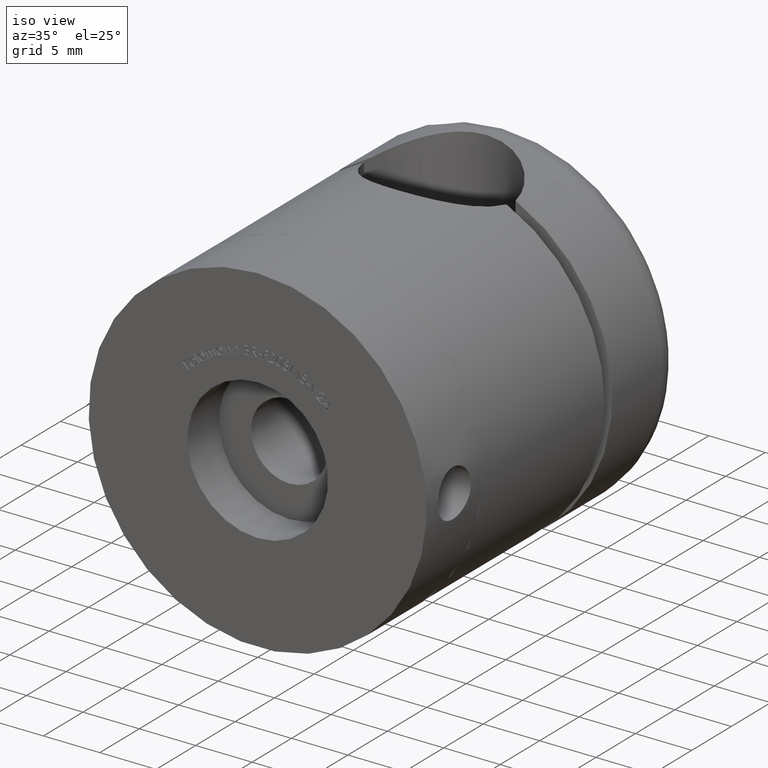
[diagram: clean part render]
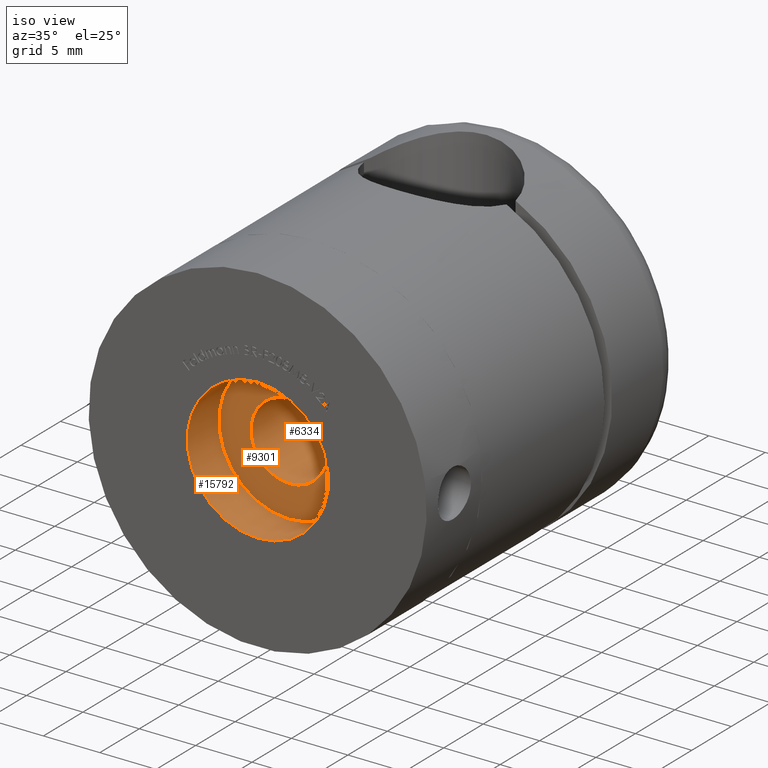
[diagram: same view with one multi-face feature highlighted, each face labeled with its STEP entity id]
A machine part, iso view. The highlighted faces form ONE feature: a stepped (counterbored) hole: 2 coaxial cylindrical walls of radii 3.4 -> 6.25 mm joined by 1 annular planar shoulder face(s). The faces share edges in the B-rep.
Their STEP definitions:
[1] entity #15792 (Cylinder):
#94 = CIRCLE ( 'NONE', #186, 6.250000000000000000 ) ;
#177 = DIRECTION ( 'NONE',  ( -0.0000000000000000000, -1.000000000000000000, -0.0000000000000000000 ) ) ;
#186 = AXIS2_PLACEMENT_3D ( 'NONE', #3743, #10500, #11815 ) ;
#1833 = CARTESIAN_POINT ( 'NONE',  ( 0.0000000000000000000, 0.0000000000000000000, -6.250000000000000000 ) ) ;
#1942 = CARTESIAN_POINT ( 'NONE',  ( 0.0000000000000000000, 0.0000000000000000000, 0.0000000000000000000 ) ) ;
#3018 = VERTEX_POINT ( 'NONE', #1833 ) ;
#3154 = EDGE_LOOP ( 'NONE', ( #11336 ) ) ;
#3409 = ORIENTED_EDGE ( 'NONE', *, *, #7794, .T. ) ;
#3743 = CARTESIAN_POINT ( 'NONE',  ( 0.0000000000000000000, 4.000000000000000000, 0.0000000000000000000 ) ) ;
#4492 = FACE_OUTER_BOUND ( 'NONE', #3154, .T. ) ;
#4604 = DIRECTION ( 'NONE',  ( 0.0000000000000000000, -1.000000000000000000, 0.0000000000000000000 ) ) ;
#4685 = FACE_OUTER_BOUND ( 'NONE', #16888, .T. ) ;
#4780 = EDGE_CURVE ( 'NONE', #10491, #10491, #94, .T. ) ;
#7794 = EDGE_CURVE ( 'NONE', #3018, #3018, #12102, .T. ) ;
#8202 = DIRECTION ( 'NONE',  ( 0.0000000000000000000, 0.0000000000000000000, -1.000000000000000000 ) ) ;
#8991 = AXIS2_PLACEMENT_3D ( 'NONE', #1942, #4604, #9738 ) ;
#9738 = DIRECTION ( 'NONE',  ( 0.0000000000000000000, 0.0000000000000000000, -1.000000000000000000 ) ) ;
#10314 = CYLINDRICAL_SURFACE ( 'NONE', #12059, 6.250000000000000000 ) ;
#10491 = VERTEX_POINT ( 'NONE', #15042 ) ;
#10500 = DIRECTION ( 'NONE',  ( 0.0000000000000000000, -1.000000000000000000, 0.0000000000000000000 ) ) ;
#11336 = ORIENTED_EDGE ( 'NONE', *, *, #4780, .F. ) ;
#11815 = DIRECTION ( 'NONE',  ( 0.0000000000000000000, 0.0000000000000000000, -1.000000000000000000 ) ) ;
#12059 = AXIS2_PLACEMENT_3D ( 'NONE', #12309, #177, #8202 ) ;
#12102 = CIRCLE ( 'NONE', #8991, 6.250000000000000000 ) ;
#12309 = CARTESIAN_POINT ( 'NONE',  ( 0.0000000000000000000, 4.000000000000000000, 0.0000000000000000000 ) ) ;
#15042 = CARTESIAN_POINT ( 'NONE',  ( 0.0000000000000000000, 4.000000000000000000, -6.250000000000000000 ) ) ;
#15792 = ADVANCED_FACE ( 'NONE', ( #4492, #4685 ), #10314, .F. ) ;
#16888 = EDGE_LOOP ( 'NONE', ( #3409 ) ) ;
[2] entity #6334 (Cylinder):
#80 = AXIS2_PLACEMENT_3D ( 'NONE', #7316, #2033, #9877 ) ;
#336 = ORIENTED_EDGE ( 'NONE', *, *, #9376, .T. ) ;
#2033 = DIRECTION ( 'NONE',  ( -0.0000000000000000000, -1.000000000000000000, -0.0000000000000000000 ) ) ;
#2146 = AXIS2_PLACEMENT_3D ( 'NONE', #8802, #14100, #10184 ) ;
#2180 = FACE_OUTER_BOUND ( 'NONE', #7659, .T. ) ;
#2833 = DIRECTION ( 'NONE',  ( -0.0000000000000000000, -1.000000000000000000, -0.0000000000000000000 ) ) ;
#2994 = CYLINDRICAL_SURFACE ( 'NONE', #80, 3.399999999999997700 ) ;
#4200 = DIRECTION ( 'NONE',  ( 0.0000000000000000000, 0.0000000000000000000, -1.000000000000000000 ) ) ;
#4252 = VERTEX_POINT ( 'NONE', #12516 ) ;
#5368 = CARTESIAN_POINT ( 'NONE',  ( 0.0000000000000000000, 4.000000000000000000, 0.0000000000000000000 ) ) ;
#5705 = FACE_OUTER_BOUND ( 'NONE', #10628, .T. ) ;
#6334 = ADVANCED_FACE ( 'NONE', ( #5705, #2180 ), #2994, .F. ) ;
#7175 = CARTESIAN_POINT ( 'NONE',  ( 0.0000000000000000000, 4.000000000000000000, -3.399999999999998600 ) ) ;
#7316 = CARTESIAN_POINT ( 'NONE',  ( 0.0000000000000000000, 4.000000000000000000, -0.0000000000000000000 ) ) ;
#7659 = EDGE_LOOP ( 'NONE', ( #14364 ) ) ;
#8802 = CARTESIAN_POINT ( 'NONE',  ( 0.0000000000000000000, 13.15000000000000000, 0.0000000000000000000 ) ) ;
#9376 = EDGE_CURVE ( 'NONE', #15264, #15264, #17029, .T. ) ;
#9877 = DIRECTION ( 'NONE',  ( 0.0000000000000000000, 0.0000000000000000000, -1.000000000000000000 ) ) ;
#10184 = DIRECTION ( 'NONE',  ( 0.0000000000000000000, 0.0000000000000000000, 1.000000000000000000 ) ) ;
#10628 = EDGE_LOOP ( 'NONE', ( #336 ) ) ;
#11611 = CIRCLE ( 'NONE', #2146, 3.399999999999997700 ) ;
#12495 = EDGE_CURVE ( 'NONE', #4252, #4252, #11611, .T. ) ;
#12516 = CARTESIAN_POINT ( 'NONE',  ( 0.0000000000000000000, 13.15000000000000000, 3.399999999999997700 ) ) ;
#14100 = DIRECTION ( 'NONE',  ( 0.0000000000000000000, -1.000000000000000000, 0.0000000000000000000 ) ) ;
#14364 = ORIENTED_EDGE ( 'NONE', *, *, #12495, .F. ) ;
#15264 = VERTEX_POINT ( 'NONE', #7175 ) ;
#16002 = AXIS2_PLACEMENT_3D ( 'NONE', #5368, #2833, #4200 ) ;
#17029 = CIRCLE ( 'NONE', #16002, 3.399999999999998600 ) ;
[3] entity #9301 (Plane):
#94 = CIRCLE ( 'NONE', #186, 6.250000000000000000 ) ;
#186 = AXIS2_PLACEMENT_3D ( 'NONE', #3743, #10500, #11815 ) ;
#836 = FACE_BOUND ( 'NONE', #6303, .T. ) ;
#2101 = AXIS2_PLACEMENT_3D ( 'NONE', #3675, #13439, #9506 ) ;
#2833 = DIRECTION ( 'NONE',  ( -0.0000000000000000000, -1.000000000000000000, -0.0000000000000000000 ) ) ;
#3675 = CARTESIAN_POINT ( 'NONE',  ( 0.0000000000000000000, 4.000000000000000000, 0.0000000000000000000 ) ) ;
#3743 = CARTESIAN_POINT ( 'NONE',  ( 0.0000000000000000000, 4.000000000000000000, 0.0000000000000000000 ) ) ;
#4200 = DIRECTION ( 'NONE',  ( 0.0000000000000000000, 0.0000000000000000000, -1.000000000000000000 ) ) ;
#4780 = EDGE_CURVE ( 'NONE', #10491, #10491, #94, .T. ) ;
#5368 = CARTESIAN_POINT ( 'NONE',  ( 0.0000000000000000000, 4.000000000000000000, 0.0000000000000000000 ) ) ;
#6303 = EDGE_LOOP ( 'NONE', ( #15826 ) ) ;
#7175 = CARTESIAN_POINT ( 'NONE',  ( 0.0000000000000000000, 4.000000000000000000, -3.399999999999998600 ) ) ;
#8975 = FACE_OUTER_BOUND ( 'NONE', #15081, .T. ) ;
#9301 = ADVANCED_FACE ( 'NONE', ( #836, #8975 ), #10591, .T. ) ;
#9376 = EDGE_CURVE ( 'NONE', #15264, #15264, #17029, .T. ) ;
#9506 = DIRECTION ( 'NONE',  ( 0.0000000000000000000, -0.0000000000000000000, -1.000000000000000000 ) ) ;
#10491 = VERTEX_POINT ( 'NONE', #15042 ) ;
#10500 = DIRECTION ( 'NONE',  ( 0.0000000000000000000, -1.000000000000000000, 0.0000000000000000000 ) ) ;
#10581 = ORIENTED_EDGE ( 'NONE', *, *, #4780, .T. ) ;
#10591 = PLANE ( 'NONE',  #2101 ) ;
#11815 = DIRECTION ( 'NONE',  ( 0.0000000000000000000, 0.0000000000000000000, -1.000000000000000000 ) ) ;
#13439 = DIRECTION ( 'NONE',  ( 0.0000000000000000000, -1.000000000000000000, 0.0000000000000000000 ) ) ;
#15042 = CARTESIAN_POINT ( 'NONE',  ( 0.0000000000000000000, 4.000000000000000000, -6.250000000000000000 ) ) ;
#15081 = EDGE_LOOP ( 'NONE', ( #10581 ) ) ;
#15264 = VERTEX_POINT ( 'NONE', #7175 ) ;
#15826 = ORIENTED_EDGE ( 'NONE', *, *, #9376, .F. ) ;
#16002 = AXIS2_PLACEMENT_3D ( 'NONE', #5368, #2833, #4200 ) ;
#17029 = CIRCLE ( 'NONE', #16002, 3.399999999999998600 ) ;